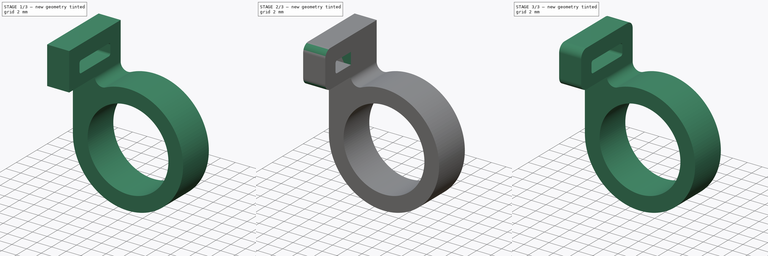
[diagram: build sequence overview — one tinted view per stage of 3, left to right]
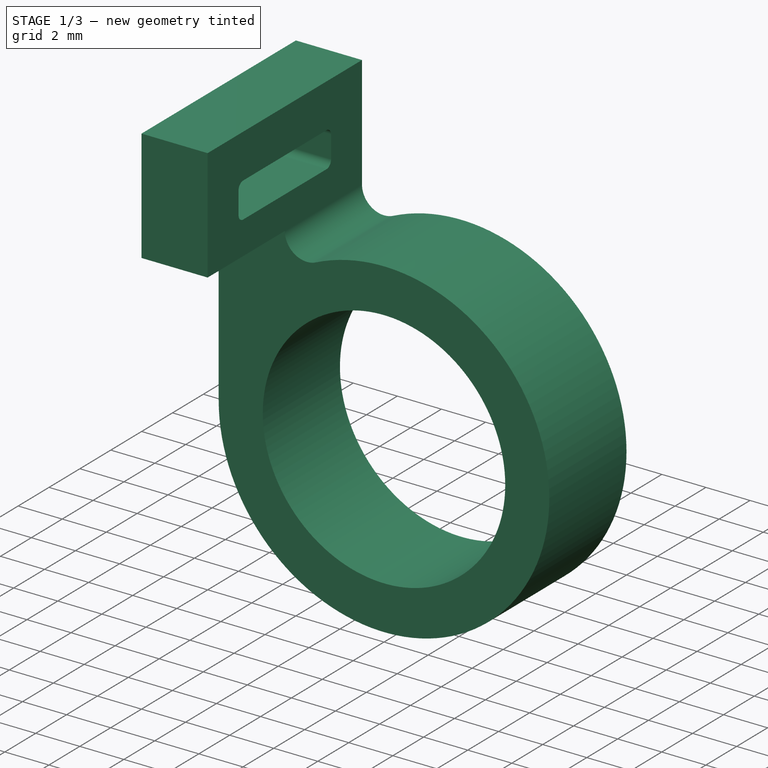
[diagram: stage 1 of 3 — iso view after this stage's code; geometry added in this stage tinted green]
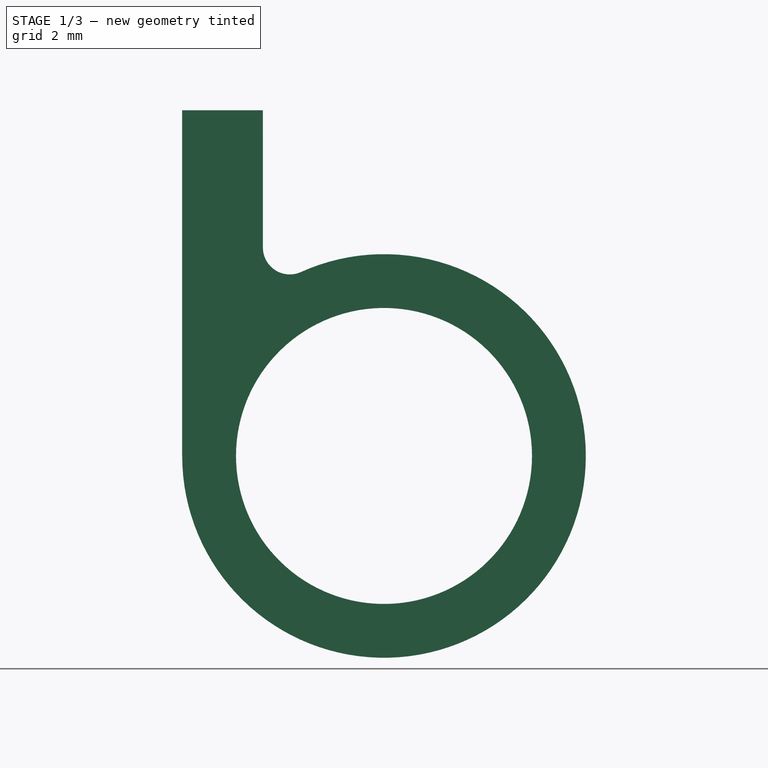
[diagram: stage 1 of 3 — front view after this stage's code; geometry added in this stage tinted green]
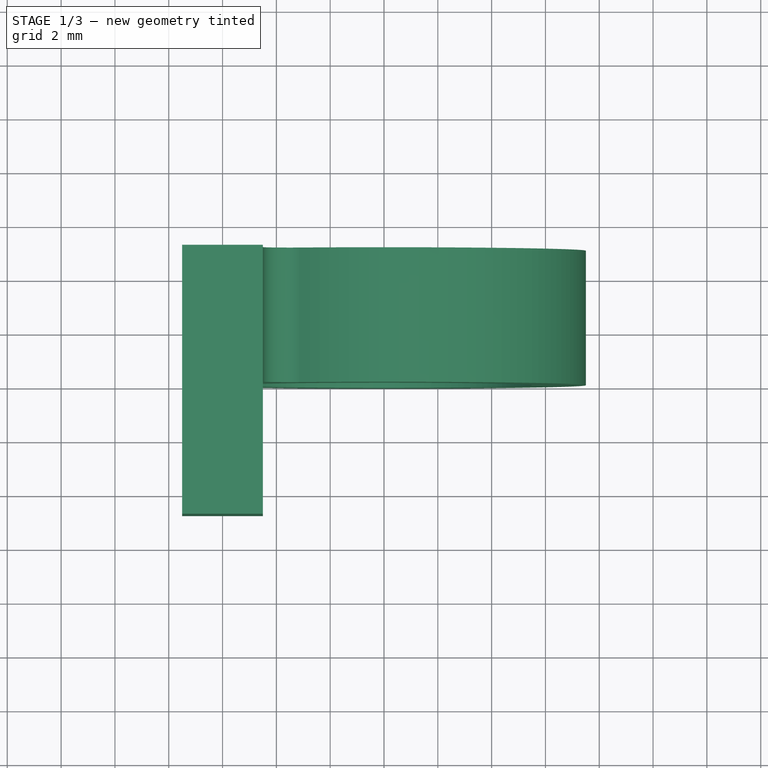
[diagram: stage 1 of 3 — top view after this stage's code; geometry added in this stage tinted green]
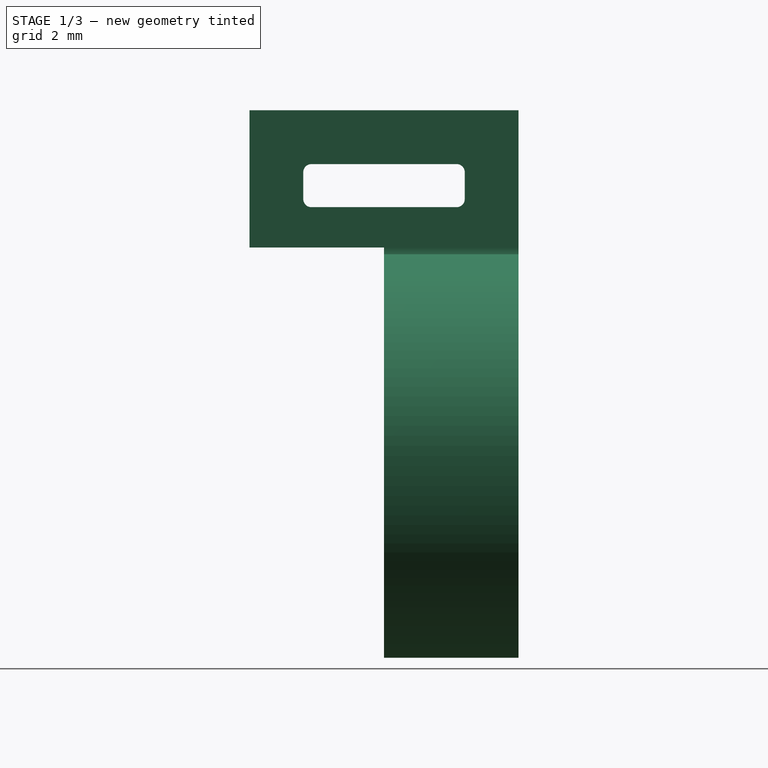
[diagram: stage 1 of 3 — right view after this stage's code; geometry added in this stage tinted green]
FCSTD DOCUMENT  (FreeCAD 1.1R20260414 (Git shallow))
Label: Belt Connector
License: Creative Commons Attribution 4.0
LicenseURL: https://creativecommons.org/licenses/by/4.0/
objects: Sketcher::SketchObject×5, PartDesign::Pad×3, App::Point×2, PartDesign::Pocket×2, PartDesign::Fillet×2, PartDesign::Body×2, PartDesign::FeatureBase×1, PartDesign::SubShapeBinder×1
note: 36 computed .brp shape members not serialized (recipe doc carries the construction recipe); baked Part::Feature solids carry a one-line shape summary decoded from their .brp

FEATURE [App::Point] Origin001
  Role = Origin
FEATURE [Sketcher::SketchObject] Sketch
  ArcFitTolerance = 1e-06
  AttachmentSupport = -> [Origin]
  ExternalTypes = [0]
  FullyConstrained = true
  MakeInternals = true
  MapMode = 5
  Placement = pos=(0,0,0) rot=(1,0,0;1.5708rad)
  _ExternalGeoVersion = 1
  sketch-geometry (11):
    g0: Circle [constr] CenterX=0 CenterY=0 CenterZ=0 NormalX=0 NormalY=0 NormalZ=1 AngleXU=0 Radius=2.45
    g1: Circle CenterX=0 CenterY=0 CenterZ=0 NormalX=0 NormalY=0 NormalZ=1 AngleXU=0 Radius=5.5
    g2: Circle CenterX=0 CenterY=0 CenterZ=0 NormalX=0 NormalY=0 NormalZ=1 AngleXU=0 Radius=7.5
    g3: LineSegment StartX=-7.5 StartY=0 StartZ=0 EndX=-7.5 EndY=12.846 EndZ=0
    g4: LineSegment StartX=-7.5 StartY=12.846 StartZ=0 EndX=-4.5 EndY=12.846 EndZ=0
    g5: LineSegment StartX=-4.5 StartY=12.846 StartZ=0 EndX=-4.5 EndY=7.74597 EndZ=0
    g6: ArcOfCircle CenterX=-3.5 CenterY=7.74597 CenterZ=0 NormalX=0 NormalY=0 NormalZ=1 AngleXU=0 Radius=1 StartAngle=3.14159 EndAngle=5.13678
    g7: LineSegment [constr] StartX=-7.5 StartY=10.846 StartZ=0 EndX=-4.5 EndY=10.846 EndZ=0
    g8: LineSegment [constr] StartX=-7.5 StartY=9.24597 StartZ=0 EndX=-4.5 EndY=9.24597 EndZ=0
    g9: GeomPoint X=-7.5 Y=9.24597 Z=0
    g10: GeomPoint X=-7.5 Y=10.846 Z=0
  constraints (28):
    c: Coincident(g0,g-1)
    c: Coincident(g1,g0)
    c: Diameter(g0) = 4.9
    c: Diameter(g1) = 11
    c: Coincident(g2,g0)
    c: Distance(g1,g2) = 2
    c: PointOnObject(g3,g-1)
    c: Vertical(g3)
    c: Coincident(g3,g4)
    c: Horizontal(g4)
    c: Coincident(g4,g5)
    c: Vertical(g5)
    c: PointOnObject(g3,g2)
    c: Distance(g4,g4) = 3
    c: Tangent(g6,g2) = 1.5708
    c: Tangent(g6,g5) = -1.5708
    c: PointOnObject(g7,g3)
    c: PointOnObject(g7,g5)
    c: Horizontal(g7)
    c: PointOnObject(g8,g3)
    c: Horizontal(g8)
    c: Distance(g8,g7) = 1.6
    c: Distance(g4,g7) = 2
    c: Radius(g6) = 1
    c: PointOnObject(g8,g5)
    c: Distance(g8,g5) = 1.5
    c: Coincident(g9,g8)
    c: Coincident(g10,g7)
FEATURE [PartDesign::Pad] Pad
  Direction = (0,-1,2e-16)
  Length = 5
  Length2 = 10
  Profile = -> Sketch [InternalFace2,InternalFace1]
  ReferenceAxis = -> Sketch [N_Axis]
  Refine = true
  Reversed = true
  SideType = 0
  Suppressed = false
  Type = 0
  Type2 = 0
FEATURE [Sketcher::SketchObject] Sketch001
  ArcFitTolerance = 1e-06
  AttachmentSupport = -> [Sketch]
  ExternalGeometry = -> [Sketch]
  ExternalTypes = [0,0,0,0]
  FullyConstrained = true
  MakeInternals = true
  MapMode = 2
  Placement = pos=(0,0,0) rot=(1,0,0;1.5708rad)
  _ExternalGeoVersion = 1
  sketch-geometry (4):
    g0: LineSegment StartX=-7.5 StartY=12.846 StartZ=0 EndX=-7.5 EndY=7.74597 EndZ=0
    g1: LineSegment StartX=-7.5 StartY=7.74597 StartZ=0 EndX=-4.5 EndY=7.74597 EndZ=0
    g2: LineSegment StartX=-4.5 StartY=7.74597 StartZ=0 EndX=-4.5 EndY=12.846 EndZ=0
    g3: LineSegment StartX=-4.5 StartY=12.846 StartZ=0 EndX=-7.5 EndY=12.846 EndZ=0
  constraints (10):
    c: Coincident(g0,g1)
    c: Coincident(g1,g2)
    c: Coincident(g2,g3)
    c: Coincident(g3,g0)
    c: Vertical(g0)
    c: Vertical(g2)
    c: Horizontal(g1)
    c: Horizontal(g3)
    c: Coincident(g0,g-6)
    c: Coincident(g1,g-5)
FEATURE [PartDesign::Pad] Pad001
  BaseFeature = -> Pad
  Direction = (0,-1,2e-16)
  Length = 5
  Length2 = 10
  Profile = -> Sketch001
  ReferenceAxis = -> Sketch001 [N_Axis]
  Refine = true
  SideType = 0
  Suppressed = false
  Type = 0
  Type2 = 0
FEATURE [Sketcher::SketchObject] Sketch002
  ArcFitTolerance = 1e-06
  AttachmentSupport = -> [Pad001]
  ExternalGeometry = -> [Sketch]
  ExternalTypes = [0,0]
  FullyConstrained = true
  MakeInternals = true
  MapMode = 5
  Placement = pos=(-7.5,0,0) rot=(0.57735,-0.57735,-0.57735;2.0944rad)
  _ExternalGeoVersion = 1
  sketch-geometry (10):
    g0: LineSegment StartX=-3 StartY=10.546 StartZ=0 EndX=-3 EndY=9.54597 EndZ=0
    g1: LineSegment StartX=-2.7 StartY=9.24597 StartZ=0 EndX=2.7 EndY=9.24597 EndZ=0
    g2: LineSegment StartX=3 StartY=9.54597 StartZ=0 EndX=3 EndY=10.546 EndZ=0
    g3: LineSegment StartX=2.7 StartY=10.846 StartZ=0 EndX=-2.7 EndY=10.846 EndZ=0
    g4: ArcOfCircle CenterX=-2.7 CenterY=10.546 CenterZ=0 NormalX=0 NormalY=0 NormalZ=1 AngleXU=0 Radius=0.3 StartAngle=1.5708 EndAngle=3.14159
    g5: ArcOfCircle CenterX=-2.7 CenterY=9.54597 CenterZ=0 NormalX=0 NormalY=0 NormalZ=1 AngleXU=0 Radius=0.3 StartAngle=3.14159 EndAngle=4.71239
    g6: ArcOfCircle CenterX=2.7 CenterY=9.54597 CenterZ=0 NormalX=0 NormalY=0 NormalZ=1 AngleXU=0 Radius=0.3 StartAngle=4.71239 EndAngle=6.28319
    g7: ArcOfCircle CenterX=2.7 CenterY=10.546 CenterZ=0 NormalX=0 NormalY=0 NormalZ=1 AngleXU=0 Radius=0.3 StartAngle=-1.8e-15 EndAngle=1.5708
    g8: GeomPoint [constr] X=-3 Y=10.846 Z=0
    g9: GeomPoint [constr] X=3 Y=9.24597 Z=0
  constraints (23):
    c: Tangent(g0,g4) = -1.5708
    c: Tangent(g0,g5) = -1.5708
    c: Tangent(g1,g5) = -1.5708
    c: Tangent(g1,g6) = -1.5708
    c: Tangent(g2,g6) = -1.5708
    c: Tangent(g2,g7) = -1.5708
    c: Tangent(g3,g7) = -1.5708
    c: Tangent(g3,g4) = -1.5708
    c: Vertical(g0)
    c: Vertical(g2)
    c: Horizontal(g1)
    c: Horizontal(g3)
    c: Equal(g4,g5)
    c: Equal(g5,g6)
    c: PointOnObject(g8,g0)
    c: PointOnObject(g8,g3)
    c: PointOnObject(g9,g1)
    c: PointOnObject(g9,g2)
    c: Radius(g5) = 0.3
    c: Symmetric(g4,g7,g-2)
    c: PointOnObject(g-4,g3)
    c: PointOnObject(g-3,g1)
    c: Distance(g2,g0) = 6
FEATURE [PartDesign::Pocket] Pocket
  BaseFeature = -> Pad001
  Direction = (1,0,0)
  Length = 5
  Length2 = 5
  Profile = -> Sketch002
  ReferenceAxis = -> Sketch002 [N_Axis]
  Refine = true
  SideType = 0
  Suppressed = false
  Type = 2
  Type2 = 0
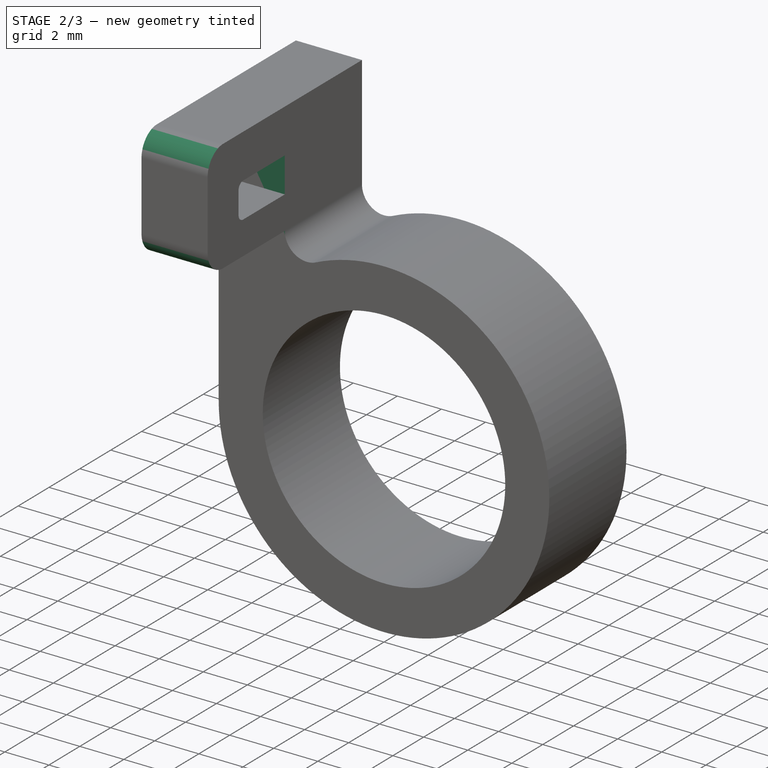
[diagram: stage 2 of 3 — iso view after this stage's code; geometry added in this stage tinted green]
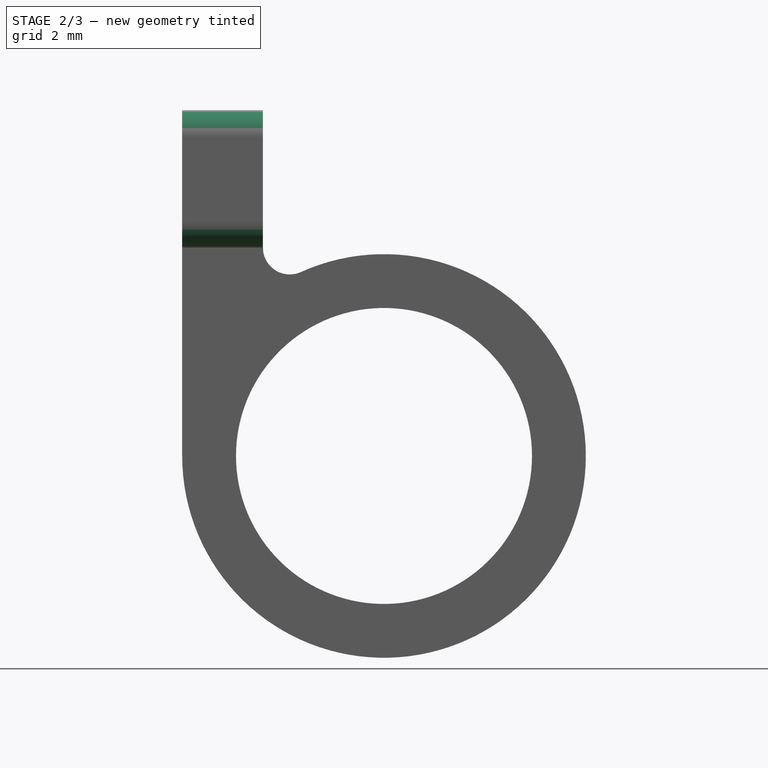
[diagram: stage 2 of 3 — front view after this stage's code; geometry added in this stage tinted green]
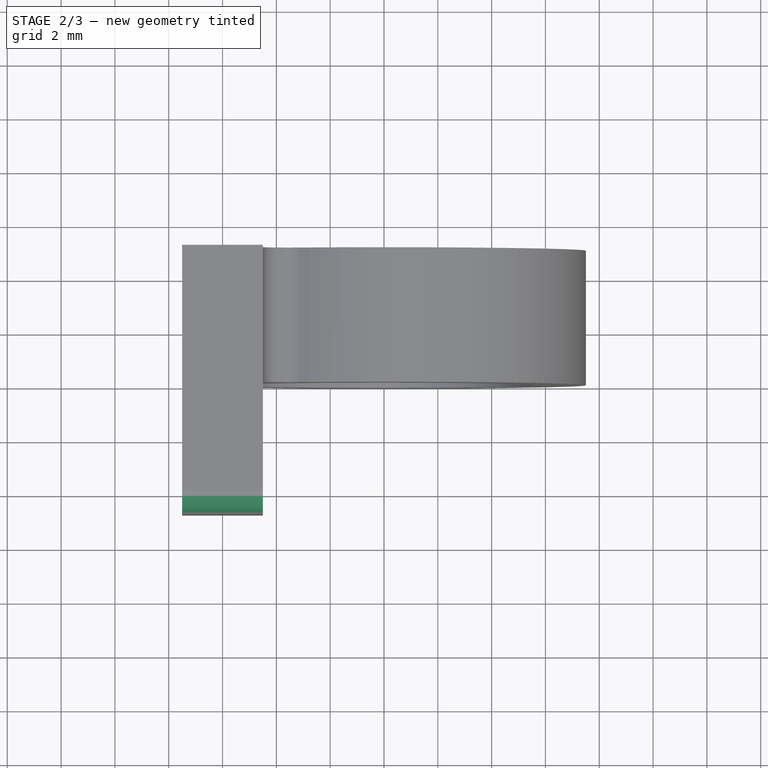
[diagram: stage 2 of 3 — top view after this stage's code; geometry added in this stage tinted green]
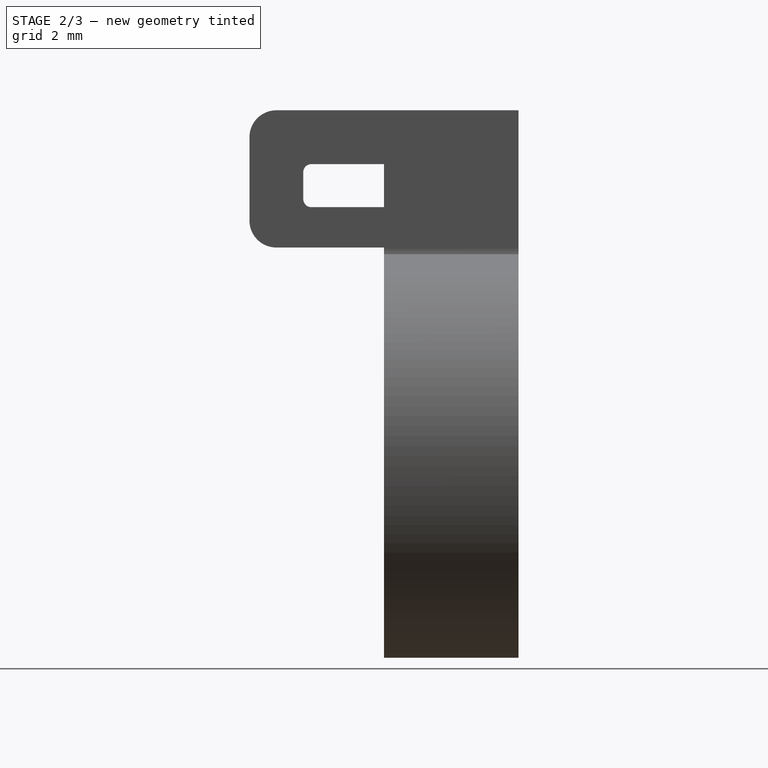
[diagram: stage 2 of 3 — right view after this stage's code; geometry added in this stage tinted green]
FEATURE [App::Point] Origin003
  Role = Origin
FEATURE [PartDesign::FeatureBase] Clone
  BaseFeature = -> Pad
  Suppressed = false
FEATURE [PartDesign::Body] Body001  label="Right Connector"
  AllowCompound = false
  Group = -> [Clone,Sketch003,Binder,Pad002,Sketch004,Pocket001,Fillet]
  Origin = -> Origin002
  Placement = pos=(0,0,0) rot=(0,0,1;3.14159rad)
  Tip = -> Fillet
FEATURE [PartDesign::Fillet] Fillet001
  Base = -> Pocket [Edge41,Edge28,Edge8]
  BaseFeature = -> Pocket
  Radius = 1
  Refine = true
  SupportTransform = false
  Suppressed = false
  UseAllEdges = false
FEATURE [PartDesign::Body] Body  label="Left Connector"
  AllowCompound = false
  Group = -> [Sketch,Pad,Sketch001,Pad001,Sketch002,Pocket,Fillet001]
  Origin = -> Origin
  Tip = -> Fillet001
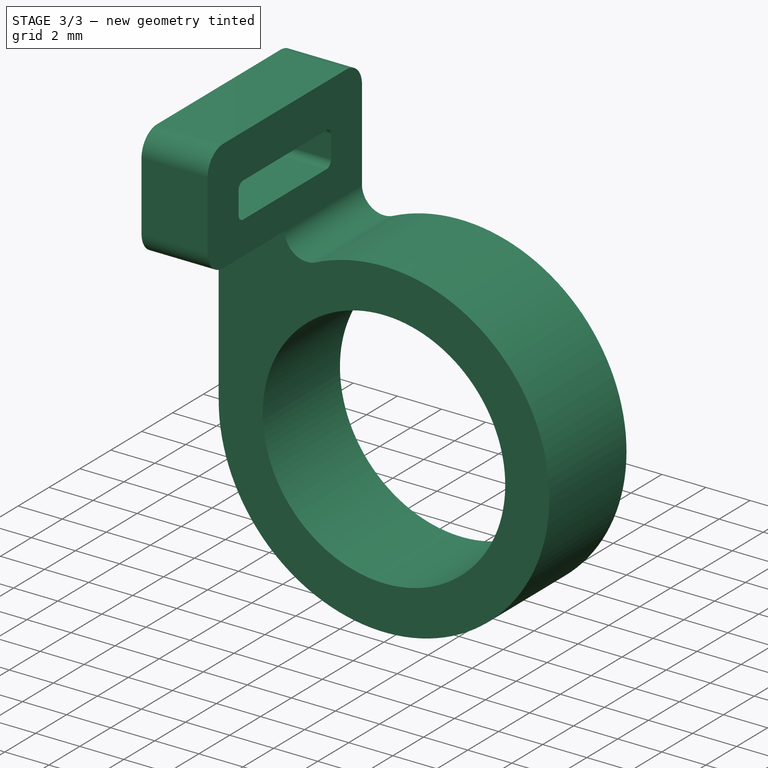
[diagram: stage 3 of 3 — iso view after this stage's code; geometry added in this stage tinted green]
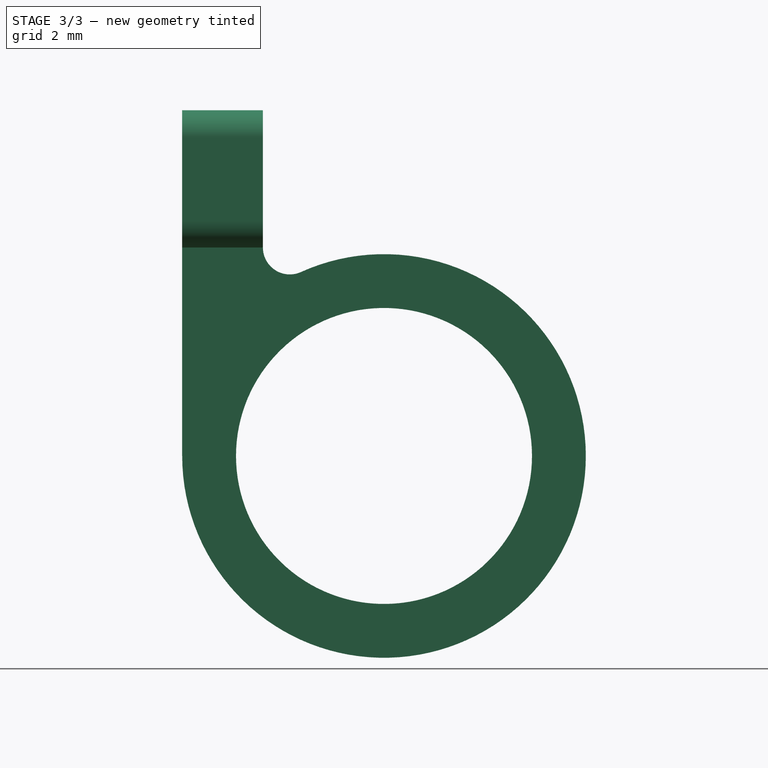
[diagram: stage 3 of 3 — front view after this stage's code; geometry added in this stage tinted green]
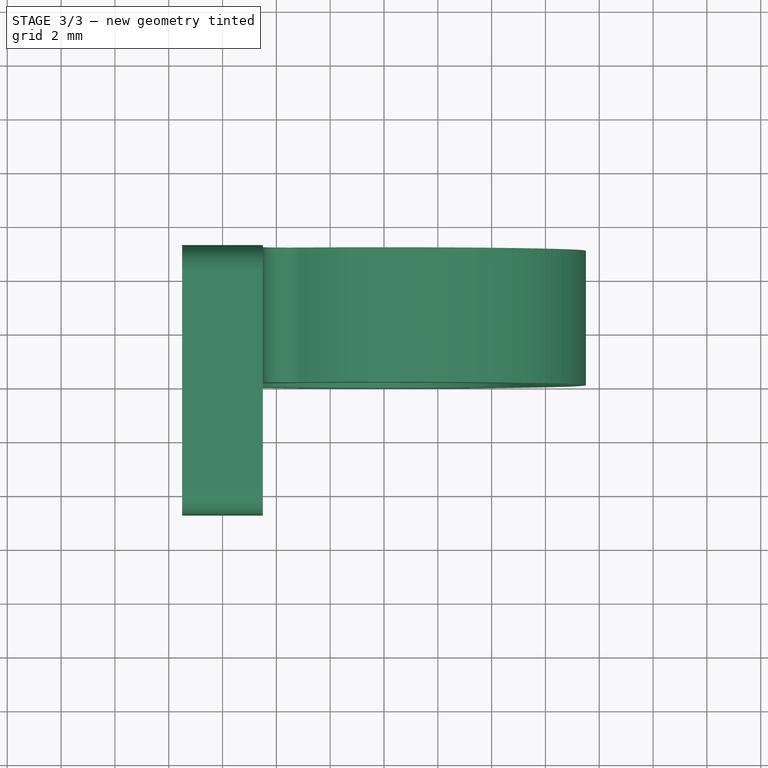
[diagram: stage 3 of 3 — top view after this stage's code; geometry added in this stage tinted green]
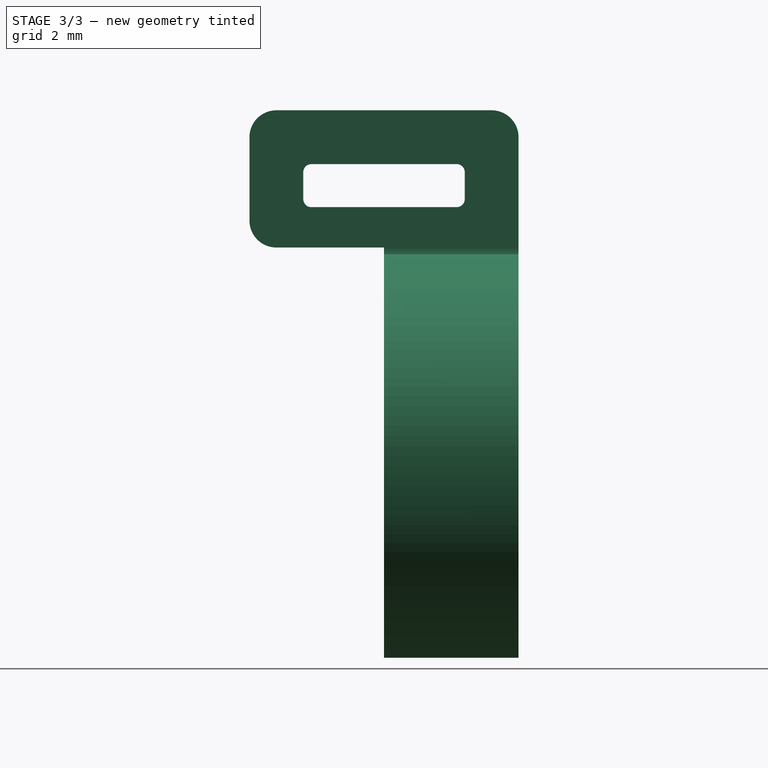
[diagram: stage 3 of 3 — right view after this stage's code; geometry added in this stage tinted green]
FEATURE [PartDesign::SubShapeBinder] Binder
  BindCopyOnChange = 0
  BindMode = 0
  ClaimChildren = false
  Context = -> Body001 [Binder.]
  Fuse = false
  MakeFace = true
  OffsetFill = false
  OffsetIntersection = false
  OffsetJoinType = 0
  OffsetOpenResult = false
  PartialLoad = false
  Refine = true
  Relative = true
  Support = -> [Body[Pocket.Edge26,Pocket.Edge22,Pocket.Edge17]]
  _Version = 2
FEATURE [Sketcher::SketchObject] Sketch003
  ArcFitTolerance = 1e-06
  AttachmentSupport = -> [Clone]
  ExternalGeometry = -> [Binder,Clone]
  ExternalTypes = [0,0,0,0,0]
  FullyConstrained = true
  MakeInternals = true
  MapMode = 5
  Placement = pos=(0,6e-16,0) rot=(1,0,0;1.5708rad)
  _ExternalGeoVersion = 1
  sketch-geometry (4):
    g0: LineSegment StartX=-7.5 StartY=12.846 StartZ=0 EndX=-7.5 EndY=7.74597 EndZ=0
    g1: LineSegment StartX=-7.5 StartY=7.74597 StartZ=0 EndX=-4.5 EndY=7.74597 EndZ=0
    g2: LineSegment StartX=-4.5 StartY=7.74597 StartZ=0 EndX=-4.5 EndY=12.846 EndZ=0
    g3: LineSegment StartX=-4.5 StartY=12.846 StartZ=0 EndX=-7.5 EndY=12.846 EndZ=0
  constraints (10):
    c: Coincident(g0,g1)
    c: Coincident(g1,g2)
    c: Coincident(g2,g3)
    c: Coincident(g3,g0)
    c: Vertical(g0)
    c: Vertical(g2)
    c: Horizontal(g1)
    c: Coincident(g0,g-4)
    c: Horizontal(g-3,g1)
    c: Coincident(g2,g-5)
FEATURE [PartDesign::Pad] Pad002
  BaseFeature = -> Clone
  Direction = (0,-1,2e-16)
  Length = 5
  Length2 = 10
  Profile = -> Sketch003
  ReferenceAxis = -> Sketch003 [N_Axis]
  Refine = true
  SideType = 0
  Suppressed = false
  Type = 0
  Type2 = 0
FEATURE [Sketcher::SketchObject] Sketch004
  ArcFitTolerance = 1e-06
  AttachmentSupport = -> [Pad002]
  ExternalGeometry = -> [Binder]
  ExternalTypes = [0,0]
  FullyConstrained = true
  MakeInternals = true
  MapMode = 5
  Placement = pos=(-7.5,0,0) rot=(0.57735,-0.57735,-0.57735;2.0944rad)
  _ExternalGeoVersion = 1
  sketch-geometry (10):
    g0: LineSegment StartX=-3 StartY=10.546 StartZ=0 EndX=-3 EndY=9.54597 EndZ=0
    g1: LineSegment StartX=-2.7 StartY=9.24597 StartZ=0 EndX=2.7 EndY=9.24597 EndZ=0
    g2: LineSegment StartX=3 StartY=9.54597 StartZ=0 EndX=3 EndY=10.546 EndZ=0
    g3: LineSegment StartX=2.7 StartY=10.846 StartZ=0 EndX=-2.7 EndY=10.846 EndZ=0
    g4: ArcOfCircle CenterX=-2.7 CenterY=10.546 CenterZ=0 NormalX=0 NormalY=0 NormalZ=1 AngleXU=0 Radius=0.3 StartAngle=1.5708 EndAngle=3.14159
    g5: ArcOfCircle CenterX=-2.7 CenterY=9.54597 CenterZ=0 NormalX=0 NormalY=0 NormalZ=1 AngleXU=0 Radius=0.3 StartAngle=3.14159 EndAngle=4.71239
    g6: ArcOfCircle CenterX=2.7 CenterY=9.54597 CenterZ=0 NormalX=0 NormalY=0 NormalZ=1 AngleXU=0 Radius=0.3 StartAngle=4.71239 EndAngle=6.28319
    g7: ArcOfCircle CenterX=2.7 CenterY=10.546 CenterZ=0 NormalX=0 NormalY=0 NormalZ=1 AngleXU=0 Radius=0.3 StartAngle=1e-15 EndAngle=1.5708
    g8: GeomPoint [constr] X=-3 Y=10.846 Z=0
    g9: GeomPoint [constr] X=3 Y=9.24597 Z=0
  constraints (21):
    c: Tangent(g0,g4) = -1.5708
    c: Tangent(g0,g5) = -1.5708
    c: Tangent(g1,g5) = -1.5708
    c: Tangent(g1,g6) = -1.5708
    c: Tangent(g2,g6) = -1.5708
    c: Tangent(g2,g7) = -1.5708
    c: Tangent(g3,g7) = -1.5708
    c: Tangent(g3,g4) = -1.5708
    c: Vertical(g0)
    c: Vertical(g2)
    c: Horizontal(g1)
    c: Equal(g5,g6)
    c: Equal(g6,g7)
    c: PointOnObject(g8,g0)
    c: PointOnObject(g8,g3)
    c: PointOnObject(g9,g1)
    c: PointOnObject(g9,g2)
    c: Coincident(g3,g-3)
    c: Coincident(g3,g-3)
    c: Coincident(g1,g-4)
    c: Distance(g2,g0) = 6
FEATURE [PartDesign::Pocket] Pocket001
  BaseFeature = -> Pad002
  Direction = (1,0,0)
  Length = 5
  Length2 = 5
  Profile = -> Sketch004
  ReferenceAxis = -> Sketch004 [N_Axis]
  Refine = true
  SideType = 0
  Suppressed = false
  Type = 2
  Type2 = 0
FEATURE [PartDesign::Fillet] Fillet
  Base = -> Pocket001 [Edge8,Edge28,Edge41]
  BaseFeature = -> Pocket001
  Radius = 1
  Refine = true
  SupportTransform = false
  Suppressed = false
  UseAllEdges = false
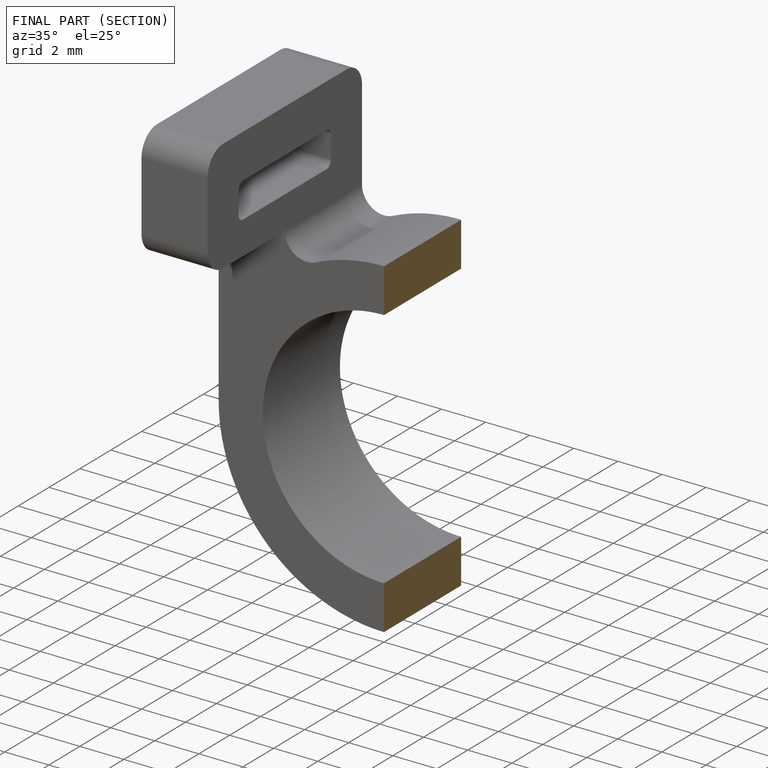
[diagram: finished part — half-section view (interior)]
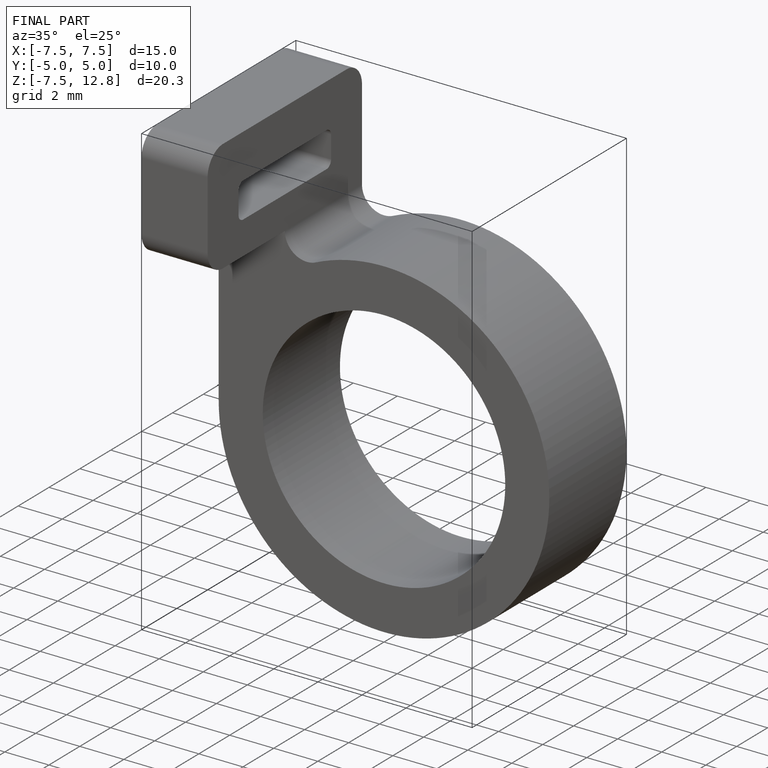
[diagram: finished part — iso view with bounding-box wireframe]
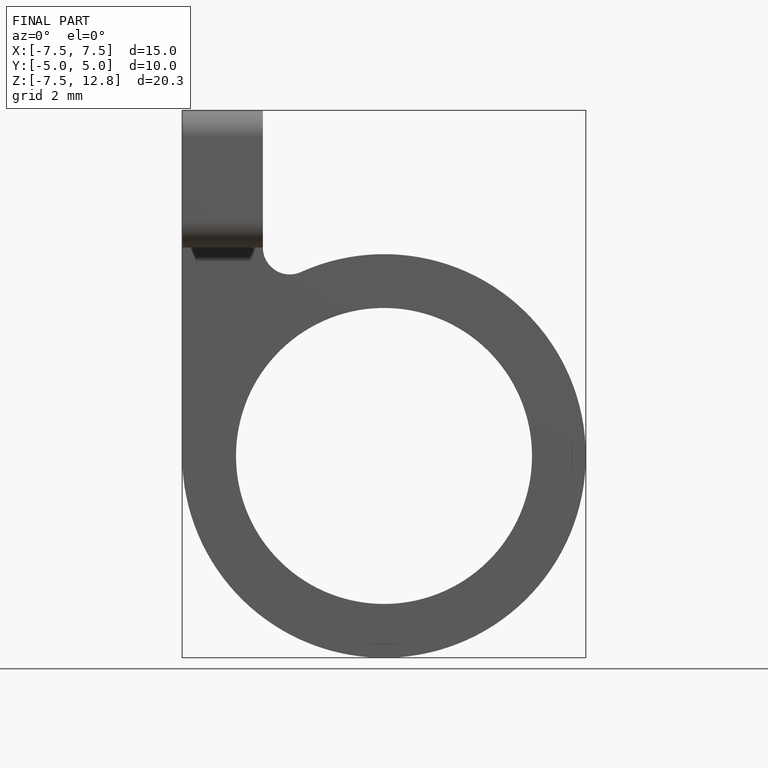
[diagram: finished part — front view with bounding-box wireframe]
